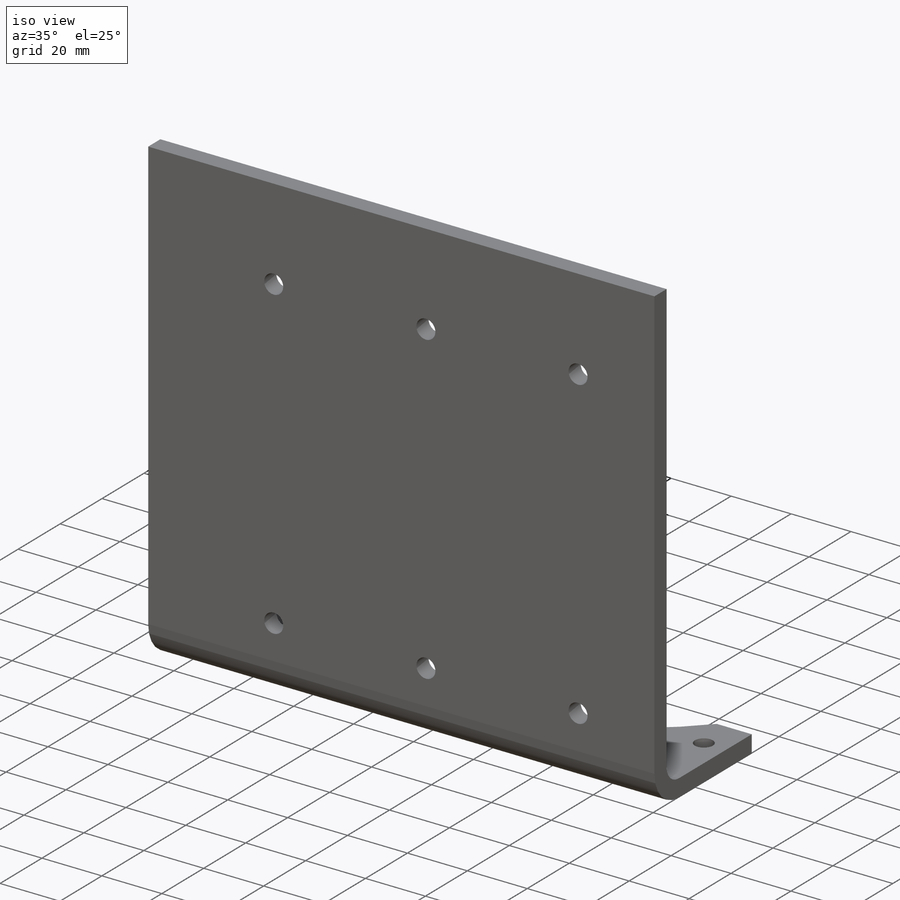
[diagram: iso view]
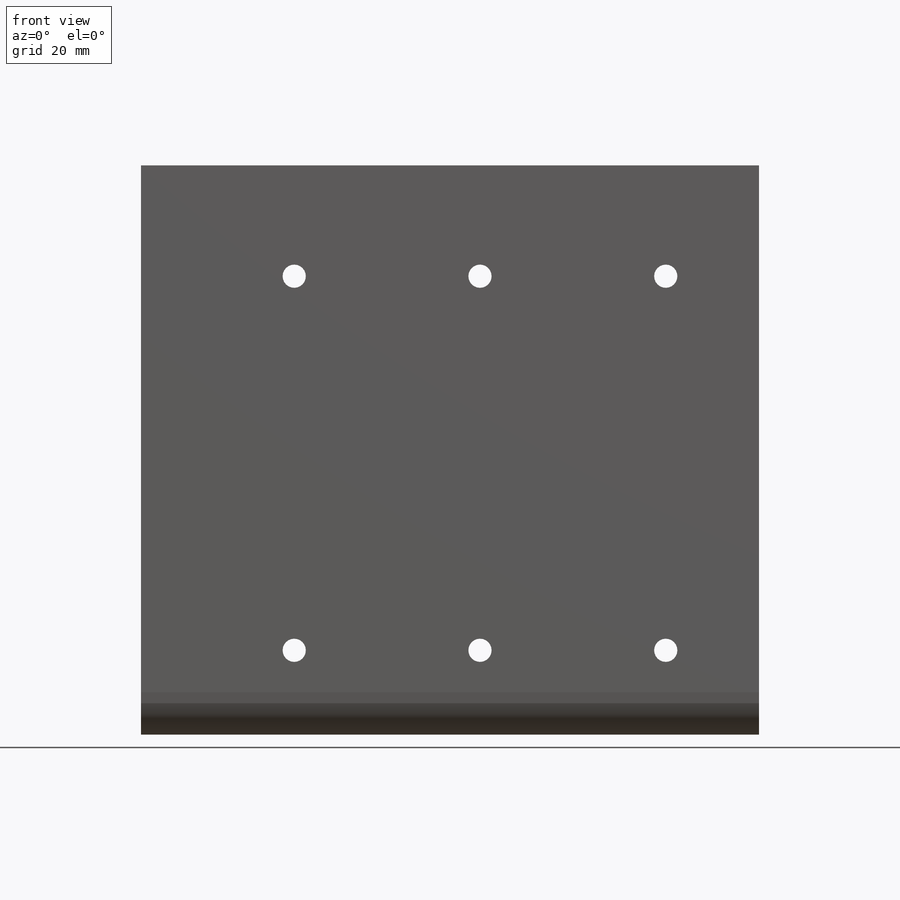
[diagram: front view]
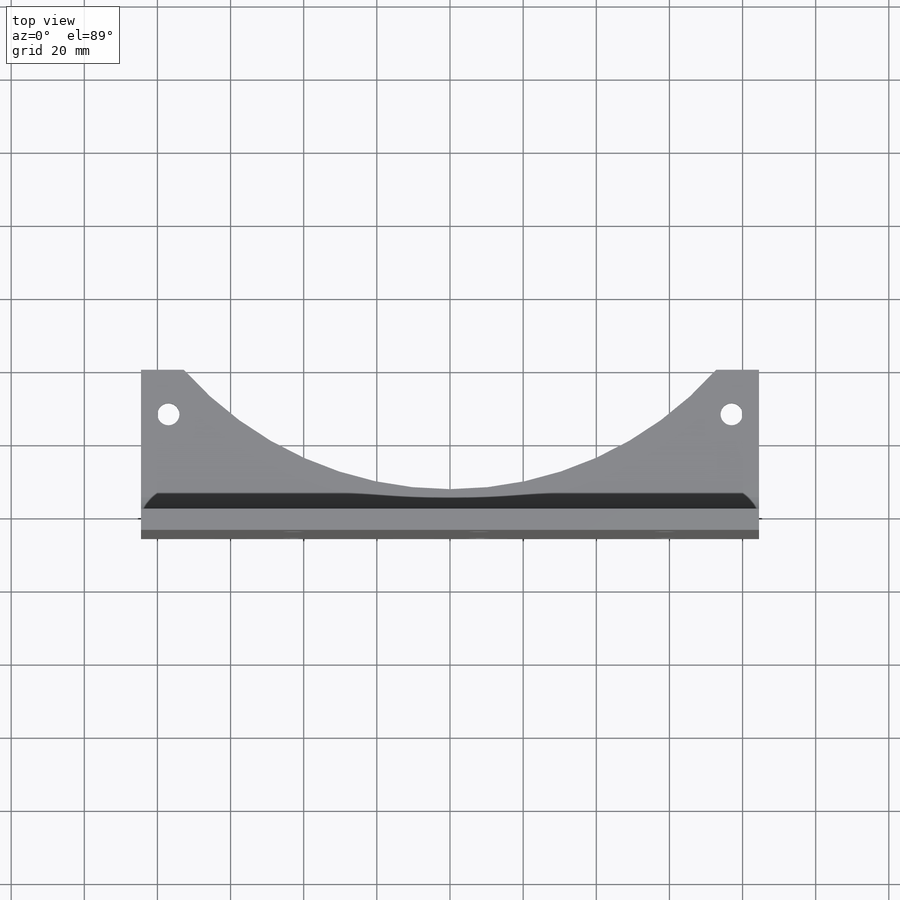
[diagram: top view]
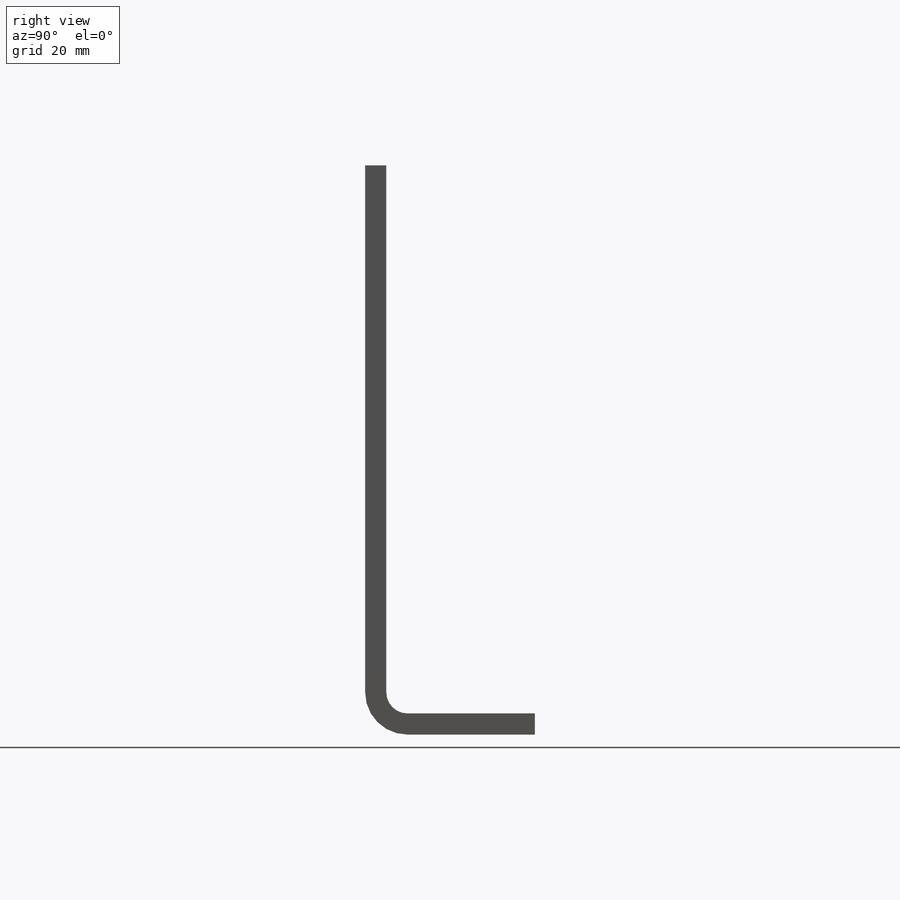
[diagram: right view]
SOLIDWORKS PART (.sldprt)
format: sldprt  version: not decoded by parser v0  size: 360,448 bytes
history: native  units: mm
features: sketch x6, extrude x2, cut_extrude x2, material x1, sheet_metal_op x1 + 1 further entry (+11 scaffold rows collapsed; 1 parser-record rows omitted)
feature tree (25):
  scaffold x11  (default folders/planes/origin — collapsed)
  material  "Material <not specified>"
  sketch  "Sketch1"  dims[D1=169.0mm D2=152.4mm]
  extrude  "Boss-Extrude1"  Depth=2.54mm
  sketch  "Sketch2"  dims[D1=2.54mm]
  extrude  "Boss-Extrude2"  Depth=40.64mm
  sketch  "Sketch3"  dims[c1.D1=~4.200987mm c1.D2=~8.313567mm c2.D1=~6.041743mm c2.D2=~6.041743mm c2.D6=195.0mm c2.D3=154.0mm c2.D4=~12.166413mm c2.D5=77.0mm]
  sketch  "Sketch4"  dims[D1=6.35mm]
  cut_extrude  "Cut-Extrude1"  [1 undecoded]
  cut_extrude  "Cut-Extrude2"  [1 undecoded]
  sheet_metal_op  "Sheet-Metal1"
  "Flat-Pattern1"
  sketch  "Bend-Lines1"
  sketch  "Bounding-Box1"
  parser-record x1  (decoder bookkeeping rows leaked as tree rows — omitted from the tree; the rows remain in map.json)
decode coverage: 6 of 11 modeling features carry decoded parameters; 1 rows unclassified (native names shown)
note: ~ marks probable driven/reference dimensions
note: 2 parameter values undecoded
note: suppression state not decoded; provenance and decode notes live in map.json
